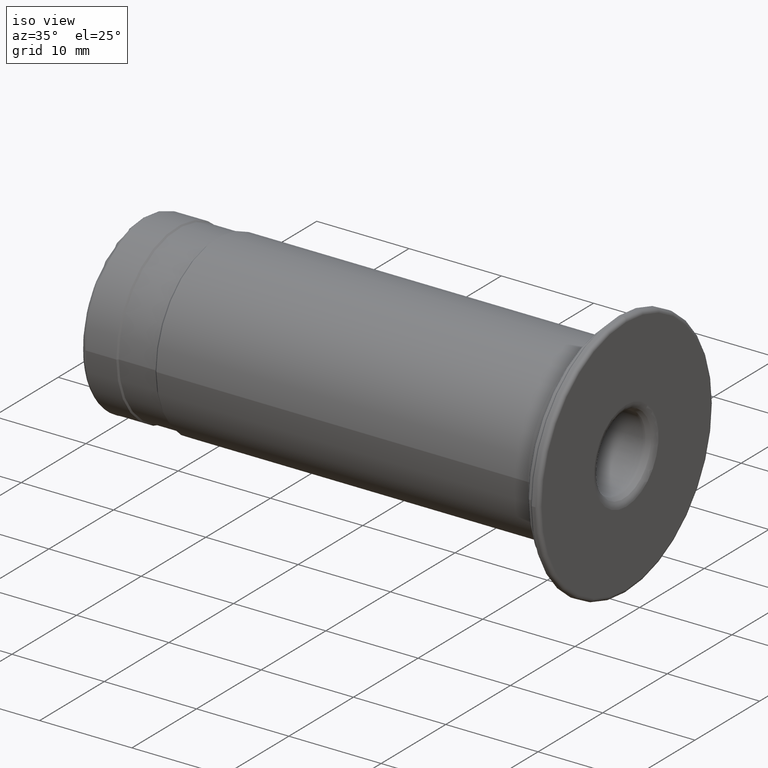
[diagram: clean part render]
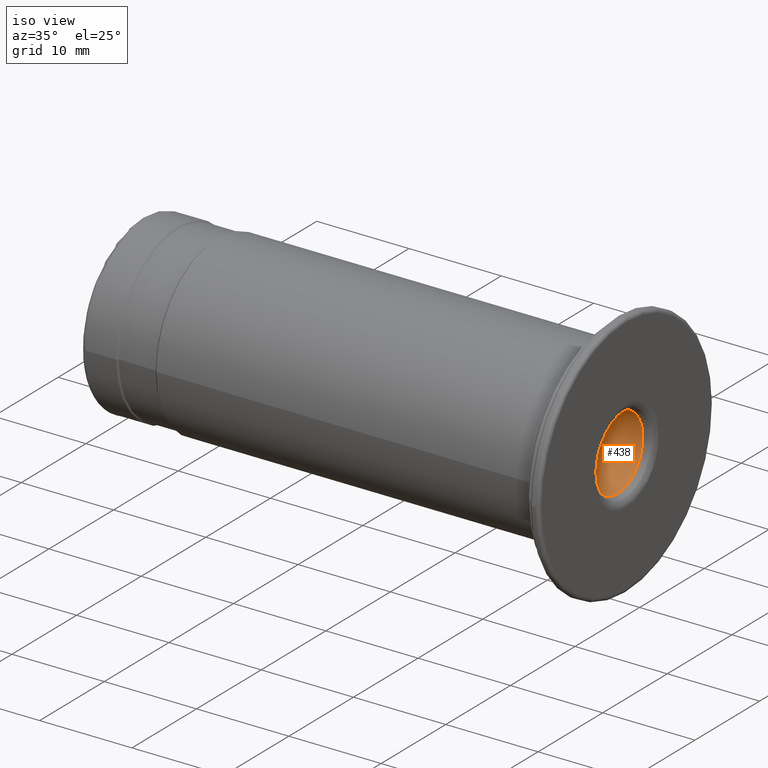
[diagram: same view with one face highlighted and labeled with its STEP entity id]
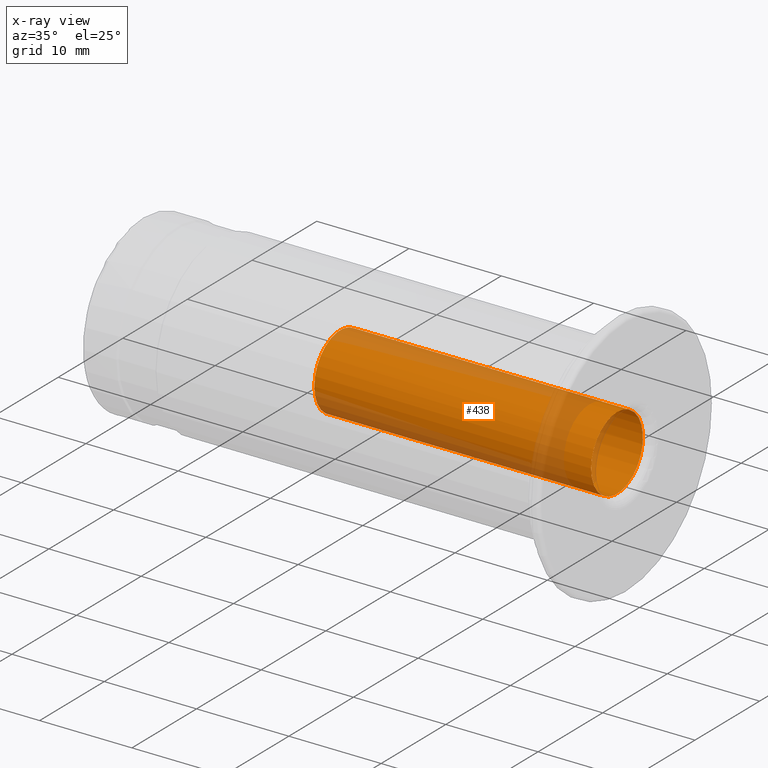
[diagram: x-ray of the same camera — body ghosted, the highlighted face saturated]
A machine part, iso view. The second image highlights one B-rep face of the part: STEP entity #438.
The next image is the same camera in x-ray: the body ghosted, the highlighted face saturated — about 33% of this face is hidden behind the body in this view.
In plain terms, the highlighted cylindrical surface (bore or boss wall) has radius 4 mm, axis along (1, 0, 0).
Its self-contained STEP definition (entity closure, byte-faithful):
#26=CYLINDRICAL_SURFACE('',#521,4.00000000000095);
#56=FACE_OUTER_BOUND('',#88,.T.);
#88=EDGE_LOOP('',(#359,#360,#361,#362,#363));
#109=LINE('',#803,#126);
#126=VECTOR('',#655,4.00000000000095);
#164=CIRCLE('',#518,4.00000000000098);
#165=CIRCLE('',#519,4.00000000000098);
#167=CIRCLE('',#522,4.00000000000091);
#206=VERTEX_POINT('',#796);
#207=VERTEX_POINT('',#797);
#208=VERTEX_POINT('',#802);
#257=EDGE_CURVE('',#206,#207,#164,.T.);
#258=EDGE_CURVE('',#207,#206,#165,.T.);
#260=EDGE_CURVE('',#206,#208,#109,.T.);
#261=EDGE_CURVE('',#208,#208,#167,.T.);
#359=ORIENTED_EDGE('',*,*,#257,.T.);
#360=ORIENTED_EDGE('',*,*,#258,.T.);
#361=ORIENTED_EDGE('',*,*,#260,.T.);
#362=ORIENTED_EDGE('',*,*,#261,.F.);
#363=ORIENTED_EDGE('',*,*,#260,.F.);
#438=ADVANCED_FACE('',(#56),#26,.F.);
#518=AXIS2_PLACEMENT_3D('',#798,#647,#648);
#519=AXIS2_PLACEMENT_3D('',#799,#649,#650);
#521=AXIS2_PLACEMENT_3D('',#801,#653,#654);
#522=AXIS2_PLACEMENT_3D('',#804,#656,#657);
#647=DIRECTION('center_axis',(1.,0.,0.));
#648=DIRECTION('ref_axis',(0.,0.,-1.));
#649=DIRECTION('center_axis',(1.,0.,0.));
#650=DIRECTION('ref_axis',(0.,0.,-1.));
#653=DIRECTION('center_axis',(1.,0.,0.));
#654=DIRECTION('ref_axis',(0.,1.,0.));
#655=DIRECTION('',(-1.,0.,0.));
#656=DIRECTION('center_axis',(1.,0.,0.));
#657=DIRECTION('ref_axis',(0.,0.,-1.));
#796=CARTESIAN_POINT('',(-2.44510261955084,-4.00000000000095,-4.89858719659057E-16));
#797=CARTESIAN_POINT('',(-2.44510261955084,-4.89858719659061E-16,4.00000000000098));
#798=CARTESIAN_POINT('Origin',(-2.44510261955084,0.,0.));
#799=CARTESIAN_POINT('Origin',(-2.44510261955084,0.,0.));
#801=CARTESIAN_POINT('Origin',(-17.4451026195512,0.,0.));
#802=CARTESIAN_POINT('',(-32.4451026195516,-4.00000000000095,-4.89858719659057E-16));
#803=CARTESIAN_POINT('',(-17.4451026195512,-4.00000000000095,-4.89858719659057E-16));
#804=CARTESIAN_POINT('Origin',(-32.4451026195516,0.,0.));